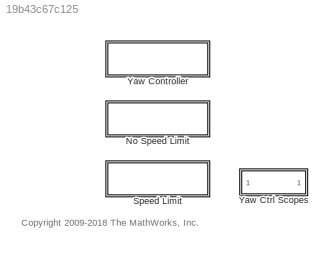
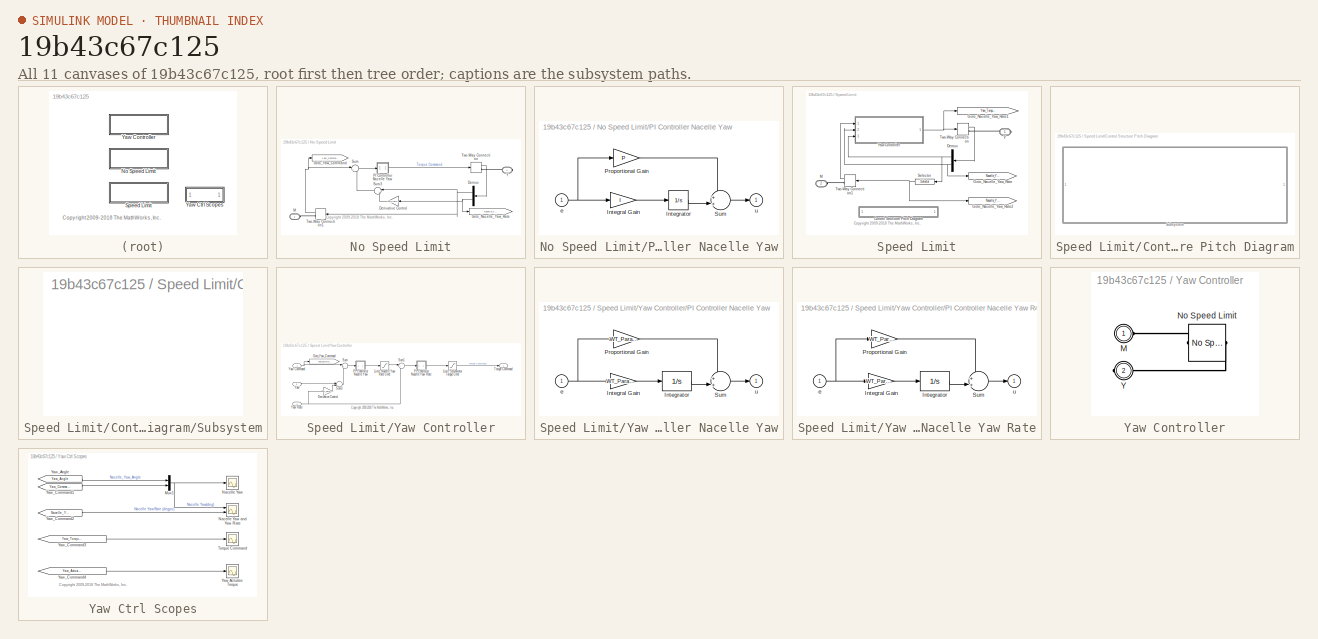
[diagram: thumbnail index - all 11 canvases of the model, root first then tree order]
MODEL slx_19b43c67c125
KIND library
CONFIG AbsTol = auto
CONFIG EnableMultiTasking = on
CONFIG FixedStep = auto
CONFIG MaxStep = auto
CONFIG MinStep = auto
CONFIG RelTol = 1e-3
CONFIG SampleTimeConstraint = Unconstrained
CONFIG Solver = ode45
CONFIG SolverName = ode45
CONFIG StartTime = 0.0
CONFIG StopTime = 10.0
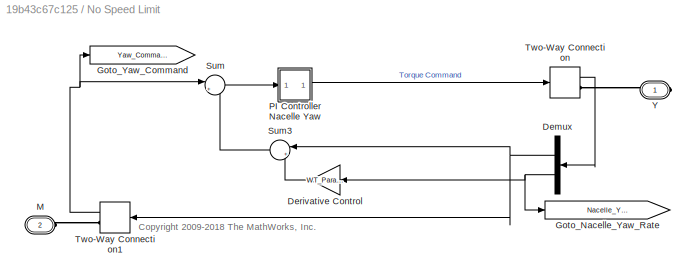
BLOCK [SubSystem] No Speed Limit
  Ports = [0, 0, 0, 0, 0, 1, 1]
  RequestExecContextInheritance = off
BLOCK [Demux] No Speed Limit/Demux
  DisplayOption = bar
  Outputs = [4 1]
  Ports = [1, 2]
BLOCK [Gain] No Speed Limit/Derivative Control
  Gain = WT_Params.Yaw_Controller.D_Gain*0
  OutDataTypeStr = Inherit: Inherit via internal rule
  ParamDataTypeStr = Inherit: Inherit via internal rule
  SaturateOnIntegerOverflow = off
BLOCK [Goto] No Speed Limit/Goto_Nacelle_Yaw_Rate
  GotoTag = Nacelle_Yaw_Rate
  TagVisibility = global
BLOCK [Goto] No Speed Limit/Goto_Yaw_Command
  GotoTag = Yaw_Command
  TagVisibility = global
BLOCK [PMIOPort] No Speed Limit/M
  Port = 2
  Side = Left
  Tag = PMCPort
BLOCK [SubSystem] No Speed Limit/PI Controller Nacelle Yaw
  Ports = [1, 1]
  RequestExecContextInheritance = off
BLOCK [Gain] No Speed Limit/PI Controller Nacelle Yaw/Integral Gain
  Gain = I
BLOCK [Integrator] No Speed Limit/PI Controller Nacelle Yaw/Integrator
  Ports = [1, 1]
BLOCK [Gain] No Speed Limit/PI Controller Nacelle Yaw/Proportional Gain
  Gain = P
BLOCK [Sum] No Speed Limit/PI Controller Nacelle Yaw/Sum
  IconShape = round
  Inputs = ++|
  Ports = [2, 1]
BLOCK [Inport] No Speed Limit/PI Controller Nacelle Yaw/e
  IconDisplay = Port number
BLOCK [Outport] No Speed Limit/PI Controller Nacelle Yaw/u
  IconDisplay = Port number
  InitialOutput = 0
BLOCK [Sum] No Speed Limit/Sum
  IconShape = round
  InputSameDT = off
  Inputs = |+-
  OutDataTypeStr = Inherit: Inherit via internal rule
  Ports = [2, 1]
  SaturateOnIntegerOverflow = off
BLOCK [Sum] No Speed Limit/Sum3
  IconShape = round
  InputSameDT = off
  Inputs = |++
  OutDataTypeStr = Inherit: Inherit via internal rule
  Ports = [2, 1]
  SaturateOnIntegerOverflow = off
BLOCK [TwoWayConnection] No Speed Limit/Two-Way Connection
  Ports = [1, 1, 0, 0, 0, 0, 1]
BLOCK [TwoWayConnection] No Speed Limit/Two-Way Connection1
  Ports = [1, 1, 0, 0, 0, 0, 1]
BLOCK [PMIOPort] No Speed Limit/Y
  Side = Right
  Tag = PMCPort
BLOCK [SubSystem] Speed Limit
  Ports = [0, 0, 0, 0, 0, 1, 1]
  RequestExecContextInheritance = off
BLOCK [SubSystem] Speed Limit/Control Structure Pitch Diagram
  Ports = []
  RequestExecContextInheritance = off
BLOCK [SubSystem] Speed Limit/Control Structure Pitch Diagram/Subsystem
  Ports = []
  RequestExecContextInheritance = off
BLOCK [Demux] Speed Limit/Demux
  DisplayOption = bar
  Outputs = [4 1]
  Ports = [1, 2]
BLOCK [Goto] Speed Limit/Goto_Nacelle_Yaw_Rate
  GotoTag = Nacelle_Yaw_Rate
  TagVisibility = global
BLOCK [Goto] Speed Limit/Goto_Nacelle_Yaw_Rate1
  GotoTag = Yaw_Torque_Command
  TagVisibility = global
BLOCK [Goto] Speed Limit/Goto_Nacelle_Yaw_Rate2
  GotoTag = Nacelle_Yaw_Angle
  TagVisibility = global
BLOCK [PMIOPort] Speed Limit/M
  Port = 2
  Side = Left
  Tag = PMCPort
BLOCK [Selector] Speed Limit/Selector
  IndexOptions = Index vector (dialog)
  Indices = [1 ]
  InputPortWidth = 4
  OutputSizes = 1
  Ports = [1, 1]
BLOCK [TwoWayConnection] Speed Limit/Two-Way Connection
  Ports = [1, 1, 0, 0, 0, 0, 1]
BLOCK [TwoWayConnection] Speed Limit/Two-Way Connection1
  Ports = [1, 1, 0, 0, 0, 0, 1]
BLOCK [PMIOPort] Speed Limit/Y
  Side = Right
  Tag = PMCPort
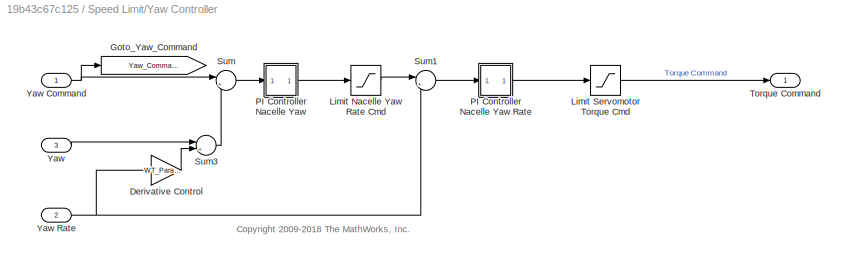
BLOCK [SubSystem] Speed Limit/Yaw Controller
  Ports = [3, 1]
  RequestExecContextInheritance = off
BLOCK [Gain] Speed Limit/Yaw Controller/Derivative Control
  Gain = WT_Params.Yaw_Controller.D_Gain*0
  OutDataTypeStr = Inherit: Inherit via internal rule
  ParamDataTypeStr = Inherit: Inherit via internal rule
  SaturateOnIntegerOverflow = off
BLOCK [Goto] Speed Limit/Yaw Controller/Goto_Yaw_Command
  GotoTag = Yaw_Command
  TagVisibility = global
BLOCK [Saturate] Speed Limit/Yaw Controller/Limit Nacelle Yaw Rate Cmd
  InputPortMap = u0
  LowerLimit = -WT_Params.Yaw_Actuator.max_yaw_rate
  Ports = [1, 1]
  UpperLimit = WT_Params.Yaw_Actuator.max_yaw_rate
BLOCK [Saturate] Speed Limit/Yaw Controller/Limit Servomotor Torque Cmd
  InputPortMap = u0
  LowerLimit = -max(WT_Params.Yaw_Actuator.Motor.max_torque_vector)
  Ports = [1, 1]
  UpperLimit = max(WT_Params.Yaw_Actuator.Motor.max_torque_vector)
BLOCK [SubSystem] Speed Limit/Yaw Controller/PI Controller Nacelle Yaw
  Ports = [1, 1]
  RequestExecContextInheritance = off
BLOCK [SubSystem] Speed Limit/Yaw Controller/PI Controller Nacelle Yaw Rate
  Ports = [1, 1]
  RequestExecContextInheritance = off
BLOCK [Gain] Speed Limit/Yaw Controller/PI Controller Nacelle Yaw Rate/Integral Gain
  Gain = WT_Params.Yaw_Controller.Yaw_Rate.I_Gain
BLOCK [Integrator] Speed Limit/Yaw Controller/PI Controller Nacelle Yaw Rate/Integrator
  LimitOutput = on
  LowerSaturationLimit = -max(WT_Params.Yaw_Actuator.Motor.max_torque_vector)
  Ports = [1, 1]
  UpperSaturationLimit = max(WT_Params.Yaw_Actuator.Motor.max_torque_vector)
BLOCK [Gain] Speed Limit/Yaw Controller/PI Controller Nacelle Yaw Rate/Proportional Gain
  Gain = WT_Params.Yaw_Controller.Yaw_Rate.P_Gain
BLOCK [Sum] Speed Limit/Yaw Controller/PI Controller Nacelle Yaw Rate/Sum
  IconShape = round
  Inputs = ++|
  Ports = [2, 1]
BLOCK [Inport] Speed Limit/Yaw Controller/PI Controller Nacelle Yaw Rate/e
  IconDisplay = Port number
BLOCK [Outport] Speed Limit/Yaw Controller/PI Controller Nacelle Yaw Rate/u
  IconDisplay = Port number
  InitialOutput = 0
BLOCK [Gain] Speed Limit/Yaw Controller/PI Controller Nacelle Yaw/Integral Gain
  Gain = WT_Params.Yaw_Controller.I_Gain
BLOCK [Integrator] Speed Limit/Yaw Controller/PI Controller Nacelle Yaw/Integrator
  LimitOutput = on
  LowerSaturationLimit = -WT_Params.Yaw_Actuator.max_yaw_rate
  Ports = [1, 1]
  UpperSaturationLimit = WT_Params.Yaw_Actuator.max_yaw_rate
BLOCK [Gain] Speed Limit/Yaw Controller/PI Controller Nacelle Yaw/Proportional Gain
  Gain = WT_Params.Yaw_Controller.P_Gain
BLOCK [Sum] Speed Limit/Yaw Controller/PI Controller Nacelle Yaw/Sum
  IconShape = round
  Inputs = ++|
  Ports = [2, 1]
BLOCK [Inport] Speed Limit/Yaw Controller/PI Controller Nacelle Yaw/e
  IconDisplay = Port number
BLOCK [Outport] Speed Limit/Yaw Controller/PI Controller Nacelle Yaw/u
  IconDisplay = Port number
  InitialOutput = 0
BLOCK [Sum] Speed Limit/Yaw Controller/Sum
  IconShape = round
  InputSameDT = off
  Inputs = |+-
  OutDataTypeStr = Inherit: Inherit via internal rule
  Ports = [2, 1]
  SaturateOnIntegerOverflow = off
BLOCK [Sum] Speed Limit/Yaw Controller/Sum1
  IconShape = round
  InputSameDT = off
  Inputs = |+-
  OutDataTypeStr = Inherit: Inherit via internal rule
  Ports = [2, 1]
  SaturateOnIntegerOverflow = off
BLOCK [Sum] Speed Limit/Yaw Controller/Sum3
  IconShape = round
  InputSameDT = off
  Inputs = |++
  OutDataTypeStr = Inherit: Inherit via internal rule
  Ports = [2, 1]
  SaturateOnIntegerOverflow = off
BLOCK [Outport] Speed Limit/Yaw Controller/Torque Command
  IconDisplay = Port number
BLOCK [Inport] Speed Limit/Yaw Controller/Yaw
  IconDisplay = Port number
  Port = 3
BLOCK [Inport] Speed Limit/Yaw Controller/Yaw Command
  IconDisplay = Port number
BLOCK [Inport] Speed Limit/Yaw Controller/Yaw Rate
  IconDisplay = Port number
  Port = 2
BLOCK [SubSystem] Yaw Controller
  BlockChoice = No Speed Limit
  MemberBlocks = No Speed Limit,Speed Limit
  Ports = [0, 0, 0, 0, 0, 1, 1]
  RequestExecContextInheritance = off
  TemplateBlock = self
BLOCK [PMIOPort] Yaw Controller/M
  Side = Left
BLOCK [Reference] Yaw Controller/No Speed Limit  REF=$bdroot/No Speed Limit
  Ports = [0, 0, 0, 0, 0, 1, 1]
  SourceBlock = $bdroot/No Speed Limit
  SourceType = SubSystem
BLOCK [PMIOPort] Yaw Controller/Y
  Port = 2
  Side = Right
BLOCK [SubSystem] Yaw Ctrl Scopes
  Ports = []
  RequestExecContextInheritance = off
BLOCK [Mux] Yaw Ctrl Scopes/Mux1
  DisplayOption = bar
  Inputs = 2
  Ports = [2, 1]
BLOCK [Scope] Yaw Ctrl Scopes/Nacelle Yaw
  Floating = off
  NumInputPorts = 1
  Ports = [1]
  ScopeSpecificationString = C++SS(StrPVP('Location','[541, 268, 1019, 492]'),StrPVP('Open','off'),StrPVP('ZoomMode','yonly'),MxPVP('AxesTitles',53,'struct(''axes1'',''%<SignalLabel>'')'),StrPVP('TimeRange','80'),StrPVP('SaveToWorkspace','on'),StrPVP('SaveName','Nacelle_Yaw_DATA'),StrPVP('DataFormat','StructureWithTime'),StrPVP('LimitDataPoints','off'),StrPVP('BlockParamSampleTime','0'),StrPVP('DataLoggingDecimation','1'),Str...<+276ch>
BLOCK [Scope] Yaw Ctrl Scopes/Nacelle Yaw and Yaw Rate
  Floating = off
  NumInputPorts = 2
  Ports = [2]
  ScopeSpecificationString = C++SS(StrPVP('Location','[695, 273, 1018, 509]'),StrPVP('Open','off'),StrPVP('ZoomMode','yonly'),MxPVP('AxesTitles',53,'struct(''axes1'',''%<SignalLabel>'',''axes2'',''%<SignalLabel>'')'),StrPVP('TimeRange','80'),StrPVP('YMin','-5~-0.8'),StrPVP('YMax','5~0.6000000000000001'),StrPVP('SaveName','ScopeData7'),StrPVP('DataFormat','StructureWithTime'),StrPVP('LimitDataPoints','off'),StrPVP('BlockParamS...<+331ch>
BLOCK [Scope] Yaw Ctrl Scopes/Torque Command
  Floating = off
  NumInputPorts = 1
  Ports = [1]
  ScopeSpecificationString = C++SS(StrPVP('Location','[634, 150, 1275, 621]'),StrPVP('Open','off'),StrPVP('ZoomMode','yonly'),MxPVP('AxesTitles',53,'struct(''axes1'',''%<SignalLabel>'')'),StrPVP('TimeRange','3.951473136915078'),StrPVP('SaveName','ScopeData1'),StrPVP('DataFormat','StructureWithTime'),StrPVP('LimitDataPoints','off'),StrPVP('BlockParamSampleTime','0'),StrPVP('DataLoggingDecimation','1'),StrPVP('BlockParamSampleI...<+254ch>
BLOCK [Scope] Yaw Ctrl Scopes/Yaw Actuator Torque
  Floating = off
  NumInputPorts = 1
  Ports = [1]
  ScopeSpecificationString = C++SS(StrPVP('Location','[634, 150, 1275, 621]'),StrPVP('Open','off'),StrPVP('ZoomMode','yonly'),MxPVP('AxesTitles',53,'struct(''axes1'',''%<SignalLabel>'')'),StrPVP('TimeRange','3.951473136915078'),StrPVP('SaveToWorkspace','on'),StrPVP('SaveName','Yaw_Actuator_Torque_DATA'),StrPVP('DataFormat','StructureWithTime'),StrPVP('LimitDataPoints','off'),StrPVP('BlockParamSampleTime','0'),StrPVP('DataLogg...<+299ch>
BLOCK [From] Yaw Ctrl Scopes/Yaw_Angle
  CloseFcn = tagdialog Close
  GotoTag = Yaw_Angle
  TagVisibility = global
BLOCK [From] Yaw Ctrl Scopes/Yaw_Command1
  CloseFcn = tagdialog Close
  GotoTag = Yaw_Command
  TagVisibility = global
BLOCK [From] Yaw Ctrl Scopes/Yaw_Command2
  CloseFcn = tagdialog Close
  GotoTag = Nacelle_Yaw_Rate
  TagVisibility = global
BLOCK [From] Yaw Ctrl Scopes/Yaw_Command3
  CloseFcn = tagdialog Close
  GotoTag = Yaw_Torque_Command
  TagVisibility = global
BLOCK [From] Yaw Ctrl Scopes/Yaw_Command4
  CloseFcn = tagdialog Close
  GotoTag = Yaw_Actuator_Torque
  TagVisibility = global
ANNOTATION (root): <copyright redacted>
ANNOTATION No Speed Limit: <copyright redacted>
ANNOTATION Speed Limit: <copyright redacted>
ANNOTATION Speed Limit/Yaw Controller: <copyright redacted>
ANNOTATION Yaw Ctrl Scopes: <copyright redacted>
NET No Speed Limit/Demux:1 -> No Speed Limit/Sum3:1, No Speed Limit/Two-Way Connection1:1
NET No Speed Limit/Demux:2 -> No Speed Limit/Derivative Control:1, No Speed Limit/Goto_Nacelle_Yaw_Rate:1
LINE No Speed Limit/Derivative Control:1 -> No Speed Limit/Sum3:2
LINE No Speed Limit/PI Controller Nacelle Yaw/Integral Gain:1 -> No Speed Limit/PI Controller Nacelle Yaw/Integrator:1
LINE No Speed Limit/PI Controller Nacelle Yaw/Integrator:1 -> No Speed Limit/PI Controller Nacelle Yaw/Sum:2
LINE No Speed Limit/PI Controller Nacelle Yaw/Proportional Gain:1 -> No Speed Limit/PI Controller Nacelle Yaw/Sum:1
LINE No Speed Limit/PI Controller Nacelle Yaw/Sum:1 -> No Speed Limit/PI Controller Nacelle Yaw/u:1
NET No Speed Limit/PI Controller Nacelle Yaw/e:1 -> No Speed Limit/PI Controller Nacelle Yaw/Integral Gain:1, No Speed Limit/PI Controller Nacelle Yaw/Proportional Gain:1
LINE No Speed Limit/PI Controller Nacelle Yaw:1 -> No Speed Limit/Two-Way Connection:1
LINE No Speed Limit/Sum3:1 -> No Speed Limit/Sum:2
LINE No Speed Limit/Sum:1 -> No Speed Limit/PI Controller Nacelle Yaw:1
NET No Speed Limit/Two-Way Connection1:1 -> No Speed Limit/Goto_Yaw_Command:1, No Speed Limit/Sum:1
LINE No Speed Limit/Two-Way Connection:1 -> No Speed Limit/Demux:1
NET Speed Limit/Demux:1 -> Speed Limit/Selector:1, Speed Limit/Yaw Controller:3
NET Speed Limit/Demux:2 -> Speed Limit/Goto_Nacelle_Yaw_Rate:1, Speed Limit/Yaw Controller:2
NET Speed Limit/Selector:1 -> Speed Limit/Goto_Nacelle_Yaw_Rate2:1, Speed Limit/Two-Way Connection1:1
LINE Speed Limit/Two-Way Connection1:1 -> Speed Limit/Yaw Controller:1
LINE Speed Limit/Two-Way Connection:1 -> Speed Limit/Demux:1
LINE Speed Limit/Yaw Controller/Derivative Control:1 -> Speed Limit/Yaw Controller/Sum3:2
LINE Speed Limit/Yaw Controller/Limit Nacelle Yaw Rate Cmd:1 -> Speed Limit/Yaw Controller/Sum1:1
LINE Speed Limit/Yaw Controller/Limit Servomotor Torque Cmd:1 -> Speed Limit/Yaw Controller/Torque Command:1
LINE Speed Limit/Yaw Controller/PI Controller Nacelle Yaw Rate/Integral Gain:1 -> Speed Limit/Yaw Controller/PI Controller Nacelle Yaw Rate/Integrator:1
LINE Speed Limit/Yaw Controller/PI Controller Nacelle Yaw Rate/Integrator:1 -> Speed Limit/Yaw Controller/PI Controller Nacelle Yaw Rate/Sum:2
LINE Speed Limit/Yaw Controller/PI Controller Nacelle Yaw Rate/Proportional Gain:1 -> Speed Limit/Yaw Controller/PI Controller Nacelle Yaw Rate/Sum:1
LINE Speed Limit/Yaw Controller/PI Controller Nacelle Yaw Rate/Sum:1 -> Speed Limit/Yaw Controller/PI Controller Nacelle Yaw Rate/u:1
NET Speed Limit/Yaw Controller/PI Controller Nacelle Yaw Rate/e:1 -> Speed Limit/Yaw Controller/PI Controller Nacelle Yaw Rate/Integral Gain:1, Speed Limit/Yaw Controller/PI Controller Nacelle Yaw Rate/Proportional Gain:1
LINE Speed Limit/Yaw Controller/PI Controller Nacelle Yaw Rate:1 -> Speed Limit/Yaw Controller/Limit Servomotor Torque Cmd:1
LINE Speed Limit/Yaw Controller/PI Controller Nacelle Yaw/Integral Gain:1 -> Speed Limit/Yaw Controller/PI Controller Nacelle Yaw/Integrator:1
LINE Speed Limit/Yaw Controller/PI Controller Nacelle Yaw/Integrator:1 -> Speed Limit/Yaw Controller/PI Controller Nacelle Yaw/Sum:2
LINE Speed Limit/Yaw Controller/PI Controller Nacelle Yaw/Proportional Gain:1 -> Speed Limit/Yaw Controller/PI Controller Nacelle Yaw/Sum:1
LINE Speed Limit/Yaw Controller/PI Controller Nacelle Yaw/Sum:1 -> Speed Limit/Yaw Controller/PI Controller Nacelle Yaw/u:1
NET Speed Limit/Yaw Controller/PI Controller Nacelle Yaw/e:1 -> Speed Limit/Yaw Controller/PI Controller Nacelle Yaw/Integral Gain:1, Speed Limit/Yaw Controller/PI Controller Nacelle Yaw/Proportional Gain:1
LINE Speed Limit/Yaw Controller/PI Controller Nacelle Yaw:1 -> Speed Limit/Yaw Controller/Limit Nacelle Yaw Rate Cmd:1
LINE Speed Limit/Yaw Controller/Sum1:1 -> Speed Limit/Yaw Controller/PI Controller Nacelle Yaw Rate:1
LINE Speed Limit/Yaw Controller/Sum3:1 -> Speed Limit/Yaw Controller/Sum:2
LINE Speed Limit/Yaw Controller/Sum:1 -> Speed Limit/Yaw Controller/PI Controller Nacelle Yaw:1
NET Speed Limit/Yaw Controller/Yaw Command:1 -> Speed Limit/Yaw Controller/Goto_Yaw_Command:1, Speed Limit/Yaw Controller/Sum:1
NET Speed Limit/Yaw Controller/Yaw Rate:1 -> Speed Limit/Yaw Controller/Derivative Control:1, Speed Limit/Yaw Controller/Sum1:2
LINE Speed Limit/Yaw Controller/Yaw:1 -> Speed Limit/Yaw Controller/Sum3:1
NET Speed Limit/Yaw Controller:1 -> Speed Limit/Goto_Nacelle_Yaw_Rate1:1, Speed Limit/Two-Way Connection:1
NET Yaw Ctrl Scopes/Mux1:1 -> Yaw Ctrl Scopes/Nacelle Yaw and Yaw Rate:1, Yaw Ctrl Scopes/Nacelle Yaw:1
LINE Yaw Ctrl Scopes/Yaw_Angle:1 -> Yaw Ctrl Scopes/Mux1:1
LINE Yaw Ctrl Scopes/Yaw_Command1:1 -> Yaw Ctrl Scopes/Mux1:2
LINE Yaw Ctrl Scopes/Yaw_Command2:1 -> Yaw Ctrl Scopes/Nacelle Yaw and Yaw Rate:2
LINE Yaw Ctrl Scopes/Yaw_Command3:1 -> Yaw Ctrl Scopes/Torque Command:1
LINE Yaw Ctrl Scopes/Yaw_Command4:1 -> Yaw Ctrl Scopes/Yaw Actuator Torque:1
PLINE No Speed Limit/M:RConn1 -- No Speed Limit/Two-Way Connection1:RConn1
PLINE No Speed Limit/Two-Way Connection:RConn1 -- No Speed Limit/Y:RConn1
PLINE Speed Limit/M:RConn1 -- Speed Limit/Two-Way Connection1:RConn1
PLINE Speed Limit/Two-Way Connection:RConn1 -- Speed Limit/Y:RConn1
PLINE Yaw Controller/M:RConn1 -- Yaw Controller/No Speed Limit:LConn1
PLINE Yaw Controller/No Speed Limit:RConn1 -- Yaw Controller/Y:RConn1
note: NET lines group one-source signal fan-out (src -> all destinations, sorted); 1:1 wires keep LINE
